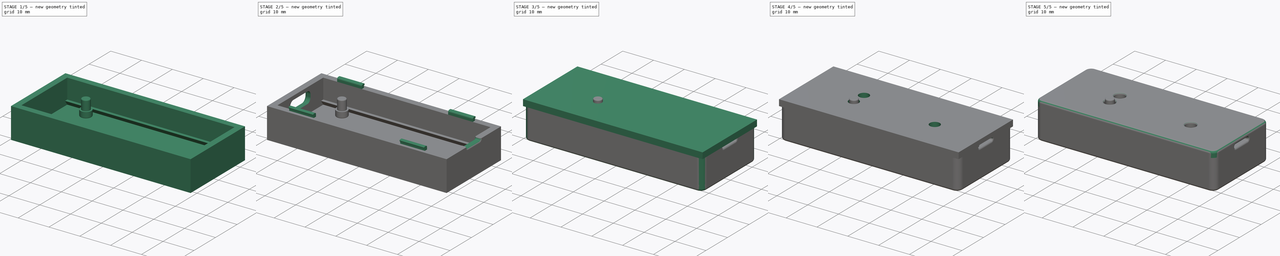
[diagram: build sequence overview — one tinted view per stage of 5, left to right]
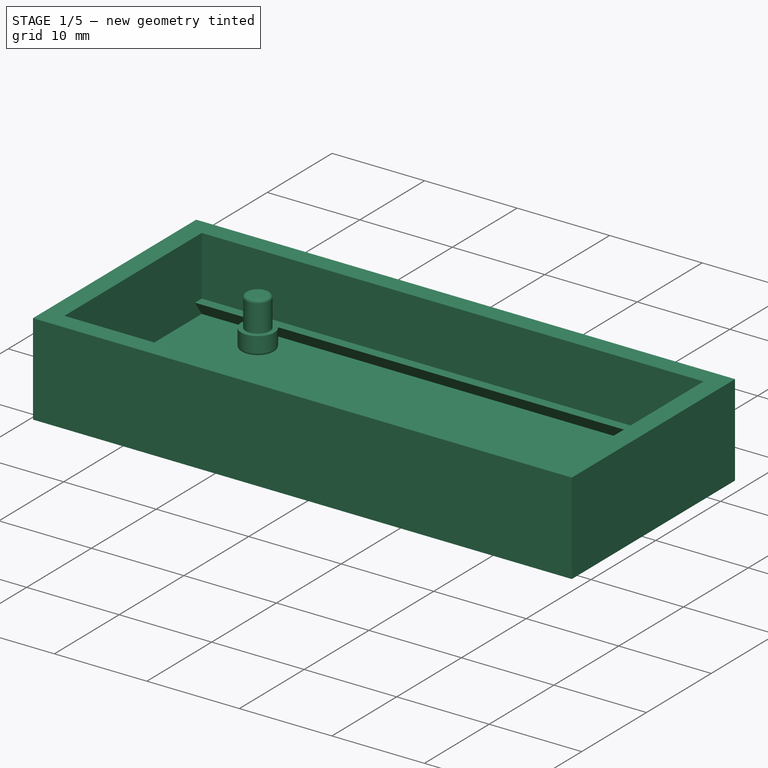
[diagram: stage 1 of 5 — iso view after this stage's code; geometry added in this stage tinted green]
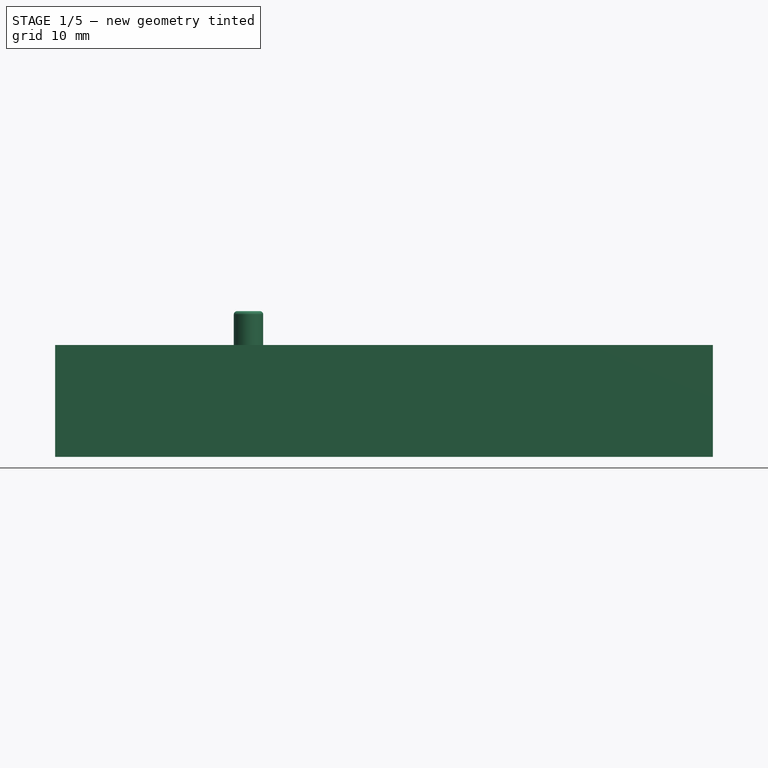
[diagram: stage 1 of 5 — front view after this stage's code; geometry added in this stage tinted green]
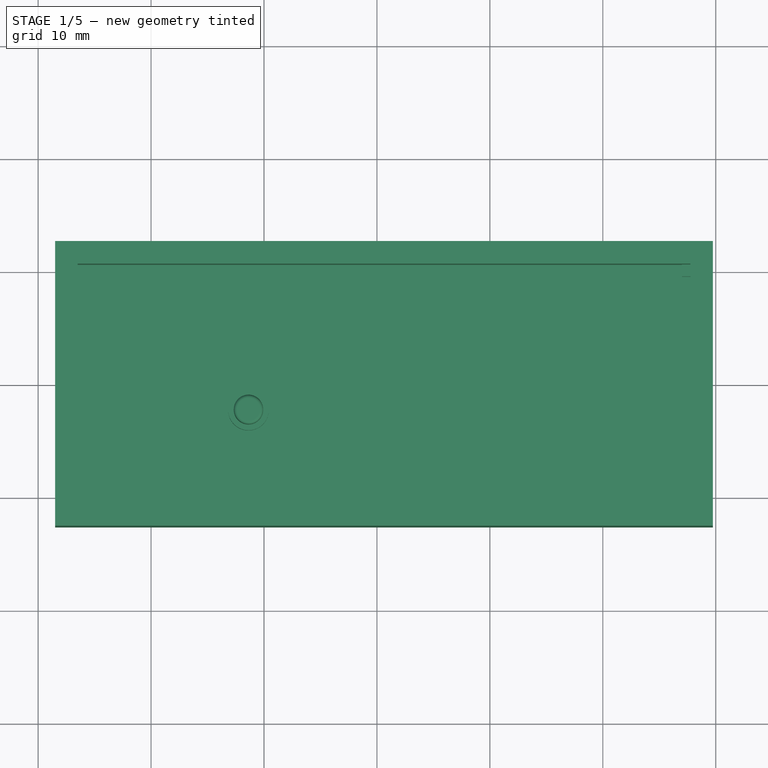
[diagram: stage 1 of 5 — top view after this stage's code; geometry added in this stage tinted green]
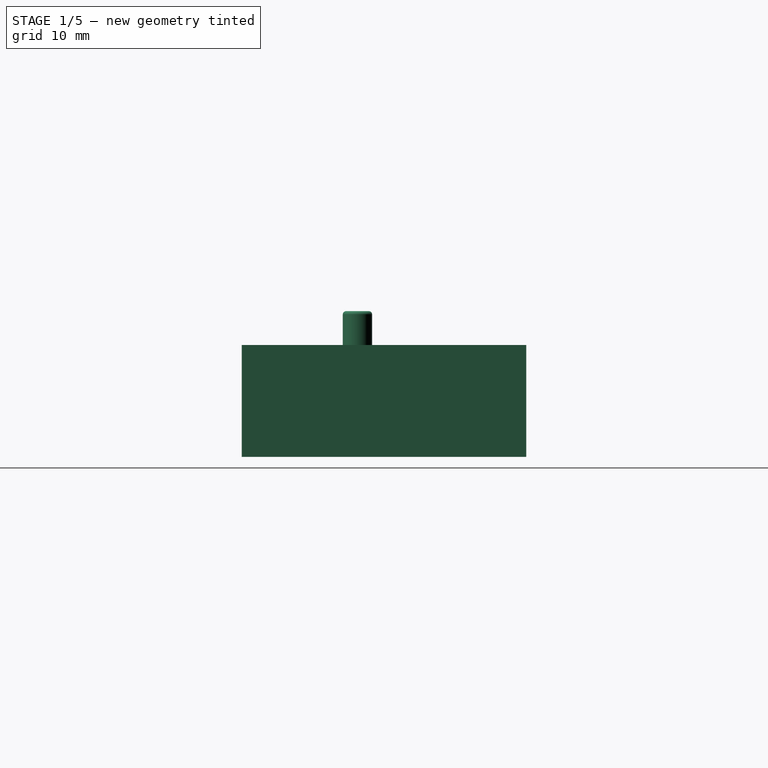
[diagram: stage 1 of 5 — right view after this stage's code; geometry added in this stage tinted green]
FCSTD DOCUMENT  (FreeCAD 0.19R27762 (Git))
Label: blackpill_case
License: Creative Commons Attribution
LicenseURL: http://creativecommons.org/licenses/by/4.0/
objects: Sketcher::SketchObject×15, PartDesign::Fillet×14, PartDesign::Pad×6, Part::SubShapeBinder×5, PartDesign::Pocket×5, PartDesign::Mirrored×4, PartDesign::Body×3, PartDesign::MultiTransform×2, Part::Feature×1, Spreadsheet::Sheet×1, PartDesign::Groove×1, PartDesign::AdditiveLoft×1, PartDesign::Revolution×1
note: 120 computed .brp shape members not serialized (recipe doc carries the construction recipe); baked Part::Feature solids carry a one-line shape summary decoded from their .brp

FEATURE [Part::SubShapeBinder] Import004  label="Import004(Top)"
  BindCopyOnChange = 0
  BindMode = 0
  ClaimChildren = false
  Context = -> Body002 [Import004.]
  FillStyle = 0
  Fuse = false
  MakeFace = false
  PartialLoad = false
  Relative = true
  Support = -> [Body001]
  _Version = 7
FEATURE [Part::SubShapeBinder] Import005  label="Import005(DIY_black_pill v003)"
  BindCopyOnChange = 0
  BindMode = 0
  ClaimChildren = false
  Context = -> Body002 [Import005.]
  FillStyle = 0
  Fuse = false
  MakeFace = false
  PartialLoad = false
  Relative = true
  Support = -> [Feature]
  _Version = 7
FEATURE [Sketcher::SketchObject] Sketch011
  AttachmentOffset = pos=(0,0,2.35) rot=(0,0,1;0rad)
  ExternalGeometry = -> [Import005,Import004]
  FullyConstrained = true
  MapMode = 5
  Placement = pos=(0,-2.35,-5e-16) rot=(1,0,0;1.5708rad)
  Support = -> [XZ_Plane002]
  sketch-geometry (6):
    g0: LineSegment StartX=-11.375 StartY=9.41 StartZ=0 EndX=-11.375 EndY=4.2 EndZ=0
    g1: LineSegment StartX=-11.375 StartY=4.2 StartZ=0 EndX=-13.175 EndY=4.2 EndZ=0
    g2: LineSegment StartX=-13.175 StartY=4.2 StartZ=0 EndX=-13.175 EndY=6.16 EndZ=0
    g3: LineSegment StartX=-13.175 StartY=6.16 StartZ=0 EndX=-12.675 EndY=6.16 EndZ=0
    g4: LineSegment StartX=-12.675 StartY=6.16 StartZ=0 EndX=-12.675 EndY=9.41 EndZ=0
    g5: LineSegment StartX=-12.675 StartY=9.41 StartZ=0 EndX=-11.375 EndY=9.41 EndZ=0
  constraints (18):
    c: Coincident(g1,g0)
    c: Horizontal(g1)
    c: Coincident(g2,g1)
    c: Coincident(g3,g2)
    c: Horizontal(g3)
    c: Coincident(g4,g3)
    c: Vertical(g4)
    c: Vertical(g2)
    c: Coincident(g5,g4)
    c: Coincident(g5,g0)
    c: Horizontal(g5)
    c: Distance(g1) = 1.8
    c: PointOnObject(g0,g-3)
    c: Distance(g2,g-5) = 0.25
    c: Distance(g0,g-4) = 1
    c: Distance(g3) = 0.5
    c: Distance(g-6,g4) = 0.35
    c: Vertical(g0)
FEATURE [Sketcher::SketchObject] Sketch
  AttachmentOffset = pos=(0,0,-3.5) rot=(0,0,1;0rad)
  ExternalGeometry = -> [Import]
  FullyConstrained = true
  MapMode = 5
  Placement = pos=(0,0,-3.5) rot=(0,0,1;0rad)
  Support = -> [XY_Plane]
  expr: .Constraints[10] = <<dimensions>>.box_wall_thickness
  expr: .Constraints[6] = <<dimensions>>.box_width
  expr: .Constraints[9] = <<dimensions>>.box_height
  sketch-geometry (4):
    g0: LineSegment StartX=-28.5 StartY=12.6 StartZ=0 EndX=29.75 EndY=12.6 EndZ=0
    g1: LineSegment StartX=29.75 StartY=12.6 StartZ=0 EndX=29.75 EndY=-12.6 EndZ=0
    g2: LineSegment StartX=29.75 StartY=-12.6 StartZ=0 EndX=-28.5 EndY=-12.6 EndZ=0
    g3: LineSegment StartX=-28.5 StartY=-12.6 StartZ=0 EndX=-28.5 EndY=12.6 EndZ=0
  constraints (11):
    c: Coincident(g0,g1)
    c: Coincident(g1,g2)
    c: Coincident(g2,g3)
    c: Coincident(g3,g0)
    c: Horizontal(g2)
    c: Vertical(g3)
    c: Distance(g0) = 58.25
    c: Symmetric(g0,g1,g-1) = 58.25
    c: Horizontal(g0) = 25.4
    c: Distance(g1) = 25.2
    c: Distance(g-3,g3) = 2
FEATURE [Sketcher::SketchObject] Sketch001
  AttachmentOffset = pos=(0,0,-1.5) rot=(0,0,1;0rad)
  ExternalGeometry = -> [Sketch]
  FullyConstrained = true
  MapMode = 2
  Placement = pos=(0,0,-1.5) rot=(0,0,1;0rad)
  Support = -> [XY_Plane]
  expr: .Constraints[21] = <<dimensions>>.box_wall_thickness
  expr: .Constraints[30] = <<dimensions>>.box_wall_thickness
  sketch-geometry (11):
    g0: LineSegment StartX=-28.5 StartY=12.6 StartZ=0 EndX=29.75 EndY=12.6 EndZ=0
    g1: LineSegment StartX=29.75 StartY=12.6 StartZ=0 EndX=29.75 EndY=-12.6 EndZ=0
    g2: LineSegment StartX=29.75 StartY=-12.6 StartZ=0 EndX=-28.5 EndY=-12.6 EndZ=0
    g3: LineSegment StartX=-28.5 StartY=-12.6 StartZ=0 EndX=-28.5 EndY=12.6 EndZ=0
    g4: LineSegment StartX=-26.5 StartY=10.6 StartZ=0 EndX=27.75 EndY=10.6 EndZ=0
    g5: LineSegment StartX=27.75 StartY=10.6 StartZ=0 EndX=27.75 EndY=-10.6 EndZ=0
    g6: LineSegment StartX=27.75 StartY=-10.6 StartZ=0 EndX=-26.5 EndY=-10.6 EndZ=0
    g7: LineSegment [constr] StartX=27.75 StartY=-10.6 StartZ=0 EndX=27.75 EndY=-12.6 EndZ=0
    g8: LineSegment StartX=-26.5 StartY=10.6 StartZ=0 EndX=-26.5 EndY=-10.6 EndZ=0
    g9: LineSegment [constr] StartX=27.75 StartY=10.6 StartZ=0 EndX=27.75 EndY=12.6 EndZ=0
    g10: LineSegment [constr] StartX=27.75 StartY=10.6 StartZ=0 EndX=29.75 EndY=10.6 EndZ=0
  constraints (31):
    c: Coincident(g0,g1)
    c: Coincident(g1,g2)
    c: Coincident(g2,g3)
    c: Coincident(g3,g0)
    c: Horizontal(g0)
    c: Horizontal(g2)
    c: Vertical(g1)
    c: Vertical(g3)
    c: Coincident(g4,g5)
    c: Coincident(g5,g6)
    c: Horizontal(g4)
    c: Horizontal(g6)
    c: Vertical(g5)
    c: Coincident(g7,g5)
    c: PointOnObject(g7,g2)
    c: Vertical(g7)
    c: Coincident(g0,g-3)
    c: Coincident(g1,g-4)
    c: Coincident(g8,g4)
    c: Coincident(g8,g6)
    c: Vertical(g8)
    c: Distance(g4,g3) = 2
    c: Coincident(g9,g4)
    c: PointOnObject(g9,g0)
    c: Vertical(g9)
    c: Equal(g9,g7)
    c: Coincident(g10,g4)
    c: PointOnObject(g10,g1)
    c: Horizontal(g10)
    c: Equal(g10,g9)
    c: Distance(g9) = 2
FEATURE [PartDesign::Pad] Pad  label="Base001"
  ClaimChildren = false
  Direction = (1,1,1)
  Fit = 0
  FitJoin = 0
  InnerFit = 0
  InnerFitJoin = 0
  InnerTaperAngle = 0
  InnerTaperAngleRev = 0
  Length = 2
  Length2 = 100
  NewSolid = false
  Profile = -> Sketch
  Suppress = false
  Type = 0
FEATURE [Sketcher::SketchObject] Sketch012
  ExternalGeometry = -> [Pad,Import]
  FullyConstrained = true
  MapMode = 5
  Support = -> [XY_Plane]
  expr: .Constraints[26] = <<dimensions>>.box_wall_thickness
  expr: .Constraints[27] = <<dimensions>>.box_wall_thickness
  sketch-geometry (10):
    g0: LineSegment StartX=-28.5 StartY=12.6 StartZ=0 EndX=29.75 EndY=12.6 EndZ=0
    g1: LineSegment StartX=29.75 StartY=12.6 StartZ=0 EndX=29.75 EndY=-12.6 EndZ=0
    g2: LineSegment StartX=29.75 StartY=-12.6 StartZ=0 EndX=-28.5 EndY=-12.6 EndZ=0
    g3: LineSegment StartX=-28.5 StartY=-12.6 StartZ=0 EndX=-28.5 EndY=12.6 EndZ=0
    g4: LineSegment StartX=-26.5 StartY=9.55 StartZ=0 EndX=27.75 EndY=9.55 EndZ=0
    g5: LineSegment StartX=27.75 StartY=9.55 StartZ=0 EndX=27.75 EndY=-9.55 EndZ=0
    g6: LineSegment StartX=27.75 StartY=-9.55 StartZ=0 EndX=-26.5 EndY=-9.55 EndZ=0
    g7: LineSegment StartX=-26.5 StartY=-9.55 StartZ=0 EndX=-26.5 EndY=9.55 EndZ=0
    g8: LineSegment [constr] StartX=-24.1 StartY=-9.05 StartZ=0 EndX=-24.1 EndY=-9.55 EndZ=0
    g9: LineSegment [constr] StartX=-24.1 StartY=9.05 StartZ=0 EndX=-24.1 EndY=9.55 EndZ=0
  constraints (28):
    c: Coincident(g0,g1)
    c: Coincident(g1,g2)
    c: Coincident(g2,g3)
    c: Coincident(g3,g0)
    c: Horizontal(g0)
    c: Horizontal(g2)
    c: Vertical(g1)
    c: Vertical(g3)
    c: Coincident(g4,g5)
    c: Coincident(g5,g6)
    c: Coincident(g6,g7)
    c: Coincident(g7,g4)
    c: Horizontal(g4)
    c: Horizontal(g6)
    c: Vertical(g5)
    c: Vertical(g7)
    c: Coincident(g0,g-3)
    c: Coincident(g-4,g1)
    c: Coincident(g8,g-6)
    c: PointOnObject(g8,g6)
    c: Vertical(g8)
    c: Coincident(g9,g-5)
    c: PointOnObject(g9,g4)
    c: Vertical(g9)
    c: Equal(g9,g8)
    c: Distance(g9) = 0.5
    c: Distance(g4,g3) = 2
    c: Distance(g4,g1) = 2
FEATURE [PartDesign::AdditiveLoft] AdditiveLoft
  BaseFeature = -> Pad
  ClaimChildren = false
  Closed = false
  Fit = 0
  FitJoin = 0
  InnerFit = 0
  InnerFitJoin = 0
  NewSolid = false
  Profile = -> Sketch001
  Ruled = false
  Sections = -> [Sketch012]
  Suppress = false
FEATURE [Sketcher::SketchObject] Sketch013
  ExternalGeometry = -> [Sketch]
  FullyConstrained = true
  MapMode = 5
  Support = -> [XY_Plane]
  expr: .Constraints[29] = <<dimensions>>.box_height - <<dimensions>>.box_wall_thickness * 2
  expr: .Constraints[30] = <<dimensions>>.box_wall_thickness
  sketch-geometry (11):
    g0: LineSegment StartX=-28.5 StartY=12.6 StartZ=0 EndX=29.75 EndY=12.6 EndZ=0
    g1: LineSegment StartX=29.75 StartY=12.6 StartZ=0 EndX=29.75 EndY=-12.6 EndZ=0
    g2: LineSegment StartX=29.75 StartY=-12.6 StartZ=0 EndX=-28.5 EndY=-12.6 EndZ=0
    g3: LineSegment StartX=-28.5 StartY=-12.6 StartZ=0 EndX=-28.5 EndY=12.6 EndZ=0
    g4: LineSegment StartX=-26.5 StartY=10.6 StartZ=0 EndX=27.75 EndY=10.6 EndZ=0
    g5: LineSegment StartX=27.75 StartY=10.6 StartZ=0 EndX=27.75 EndY=-10.6 EndZ=0
    g6: LineSegment StartX=27.75 StartY=-10.6 StartZ=0 EndX=-26.5 EndY=-10.6 EndZ=0
    g7: LineSegment [constr] StartX=27.75 StartY=-10.6 StartZ=0 EndX=27.75 EndY=-12.6 EndZ=0
    g8: LineSegment StartX=-26.5 StartY=10.6 StartZ=0 EndX=-26.5 EndY=-10.6 EndZ=0
    g9: LineSegment [constr] StartX=27.75 StartY=10.6 StartZ=0 EndX=27.75 EndY=12.6 EndZ=0
    g10: LineSegment [constr] StartX=27.75 StartY=10.6 StartZ=0 EndX=29.75 EndY=10.6 EndZ=0
  constraints (31):
    c: Coincident(g0,g1)
    c: Coincident(g1,g2)
    c: Coincident(g2,g3)
    c: Coincident(g3,g0)
    c: Horizontal(g0)
    c: Horizontal(g2)
    c: Vertical(g1)
    c: Vertical(g3)
    c: Coincident(g4,g5)
    c: Coincident(g5,g6)
    c: Horizontal(g4)
    c: Horizontal(g6)
    c: Vertical(g5)
    c: Coincident(g7,g5)
    c: PointOnObject(g7,g2)
    c: Vertical(g7)
    c: Coincident(g0,g-3)
    c: Coincident(g1,g-4)
    c: Coincident(g8,g4)
    c: Coincident(g8,g6)
    c: Vertical(g8)
    c: Coincident(g9,g4) = 2
    c: PointOnObject(g9,g0)
    c: Vertical(g9)
    c: Equal(g9,g7)
    c: Coincident(g10,g4)
    c: PointOnObject(g10,g1)
    c: Horizontal(g10)
    c: Equal(g10,g9)
    c: Distance(g8) = 21.2
    c: Distance(g4,g3) = 2
FEATURE [PartDesign::Pad] Pad002
  BaseFeature = -> AdditiveLoft
  ClaimChildren = false
  Direction = (1,1,1)
  Fit = 0
  FitJoin = 0
  InnerFit = 0
  InnerFitJoin = 0
  InnerTaperAngle = 0
  InnerTaperAngleRev = 0
  Length = 10
  Length2 = 100
  NewSolid = false
  Offset = 1.5
  Profile = -> Sketch013
  Suppress = false
  Type = 3
  UpToFace = -> Feature [Face296]
FEATURE [PartDesign::Body] Body001  label="Top"
  AutoGroupSolids = false
  ExportMode = 0
  Group = -> [Import001,Import003,Sketch006,Pad001,Sketch007,Pocket001,Sketch008,Groove,Pocket003,Sketch010,Pad004,Pocket005,MultiTransform001,Fillet003,Fillet004,Fillet005,Fillet011,Fillet016,Fillet017,Sketch016,Sketch019,Mirrored003,Mirrored004]
  Origin = -> Origin001
  Tip = -> Fillet017
  _ExportChildren = -> [Import001,Import003,Pad001,Pocket001,Groove,Pocket003,Pad004,Pocket005,MultiTransform001,Fillet003,Fillet004,Fillet005,Fillet011,Fillet016,Fillet017]
  _GroupVersion = 1
FEATURE [Sketcher::SketchObject] Sketch020
  ExternalGeometry = -> [Pad002,Import]
  FullyConstrained = true
  MapMode = 5
  Support = -> [Pad002]
  sketch-geometry (9):
    g0: LineSegment StartX=27.75 StartY=10.6 StartZ=0 EndX=27 EndY=10.6 EndZ=0
    g1: LineSegment StartX=27 StartY=10.6 StartZ=0 EndX=27 EndY=9.55 EndZ=0
    g2: LineSegment StartX=27 StartY=9.55 StartZ=0 EndX=27.75 EndY=9.55 EndZ=0
    g3: LineSegment StartX=27.75 StartY=9.55 StartZ=0 EndX=27.75 EndY=10.6 EndZ=0
    g4: LineSegment StartX=27.75 StartY=-9.55 StartZ=0 EndX=27 EndY=-9.55 EndZ=0
    g5: LineSegment StartX=27 StartY=-9.55 StartZ=0 EndX=27 EndY=-10.6 EndZ=0
    g6: LineSegment StartX=27 StartY=-10.6 StartZ=0 EndX=27.75 EndY=-10.6 EndZ=0
    g7: LineSegment StartX=27.75 StartY=-10.6 StartZ=0 EndX=27.75 EndY=-9.55 EndZ=0
    g8: LineSegment [constr] StartX=27 StartY=-9.55 StartZ=0 EndX=27 EndY=9.55 EndZ=0
  constraints (26):
    c: Coincident(g0,g1)
    c: Coincident(g1,g2)
    c: Coincident(g2,g3)
    c: Coincident(g3,g0)
    c: Horizontal(g0)
    c: Horizontal(g2)
    c: Vertical(g1)
    c: Vertical(g3)
    c: PointOnObject(g0,g-4)
    c: PointOnObject(g0,g-3)
    c: PointOnObject(g1,g-6)
    c: Distance(g1,g-7) = 0.5
    c: Coincident(g4,g5)
    c: Coincident(g5,g6)
    c: Coincident(g6,g7)
    c: Coincident(g7,g4)
    c: Horizontal(g4)
    c: Horizontal(g6)
    c: Vertical(g5)
    c: Vertical(g7)
    c: PointOnObject(g4,g-4)
    c: PointOnObject(g5,g-5)
    c: PointOnObject(g4,g-8)
    c: Coincident(g8,g4)
    c: Coincident(g8,g1)
    c: Vertical(g8)
FEATURE [PartDesign::Pad] Pad006
  BaseFeature = -> Pad002
  ClaimChildren = false
  Direction = (1,1,1)
  Fit = 0
  FitJoin = 0
  InnerFit = 0
  InnerFitJoin = 0
  InnerTaperAngle = 0
  InnerTaperAngleRev = 0
  Length = 1.6
  Length2 = 100
  NewSolid = false
  Profile = -> Sketch020
  Suppress = false
  Type = 3
  UpToFace = -> Import [Face1705]
FEATURE [PartDesign::Body] Body  label="Base"
  AutoGroupSolids = false
  ExportMode = 0
  Group = -> [Import,Pad,Sketch001,AdditiveLoft,Pad002,Pad006,Sketch013,Sketch005,Pocket,Sketch009,Pocket002,Pad005,MultiTransform,Fillet,Fillet001,Fillet002,Fillet006,Fillet008,Fillet018,Fillet019,Sketch,Sketch012,Sketch018,Mirrored,Mirrored002,Sketch020]
  Origin = -> Origin
  Tip = -> Fillet019
  _ExportChildren = -> [Import,Pad,AdditiveLoft,Pad002,Pad006,Pocket,Pocket002,Pad005,MultiTransform,Fillet,Fillet001,Fillet002,Fillet006,Fillet008,Fillet018,Fillet019]
  _GroupVersion = 1
FEATURE [PartDesign::Revolution] Revolution
  Angle = 360
  Axis = (0,2e-16,-1)
  Base = (-11.375,-2.35,9.41)
  ClaimChildren = false
  Fit = 0
  FitJoin = 0
  InnerFit = 0
  InnerFitJoin = 0
  NewSolid = false
  Placement = pos=(0,0,0) rot=(1,0,0;1.5708rad)
  Profile = -> Sketch011
  ReferenceAxis = -> Sketch011 [Edge1]
  Suppress = false
FEATURE [PartDesign::Fillet] Fillet020
  Base = -> Revolution [Face5,Face1]
  BaseFeature = -> Revolution
  NewSolid = false
  Placement = pos=(0,0,0) rot=(1,0,0;1.5708rad)
  Radius = 0.3
  SupportTransform = false
  Suppress = false
FEATURE [PartDesign::Body] Body002  label="Button"
  AutoGroupSolids = false
  ExportMode = 0
  Group = -> [Import004,Import005,Sketch011,Revolution,Fillet020]
  Origin = -> Origin002
  Tip = -> Fillet020
  _ExportChildren = -> [Import004,Import005,Revolution,Fillet020]
  _GroupVersion = 1
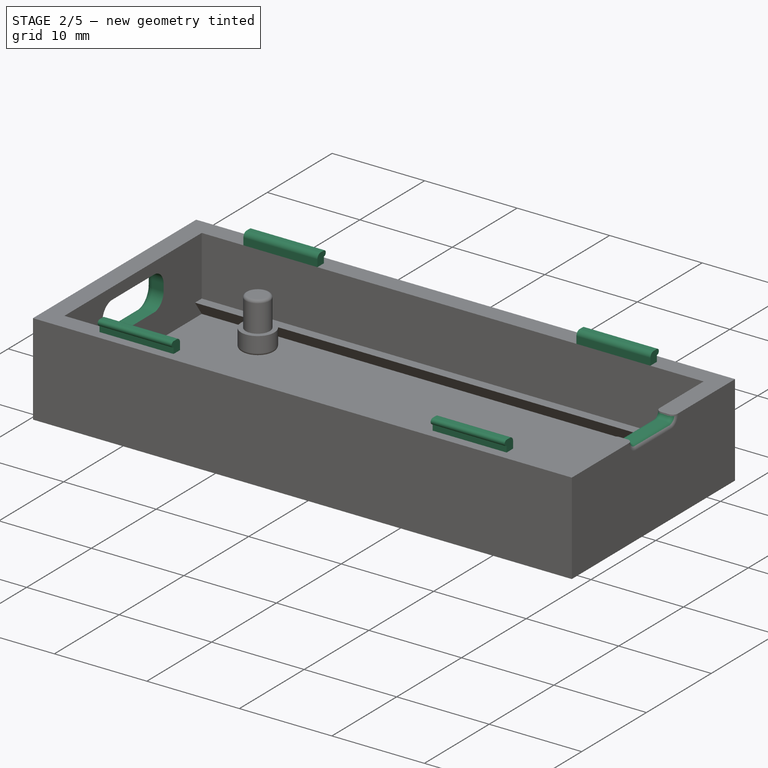
[diagram: stage 2 of 5 — iso view after this stage's code; geometry added in this stage tinted green]
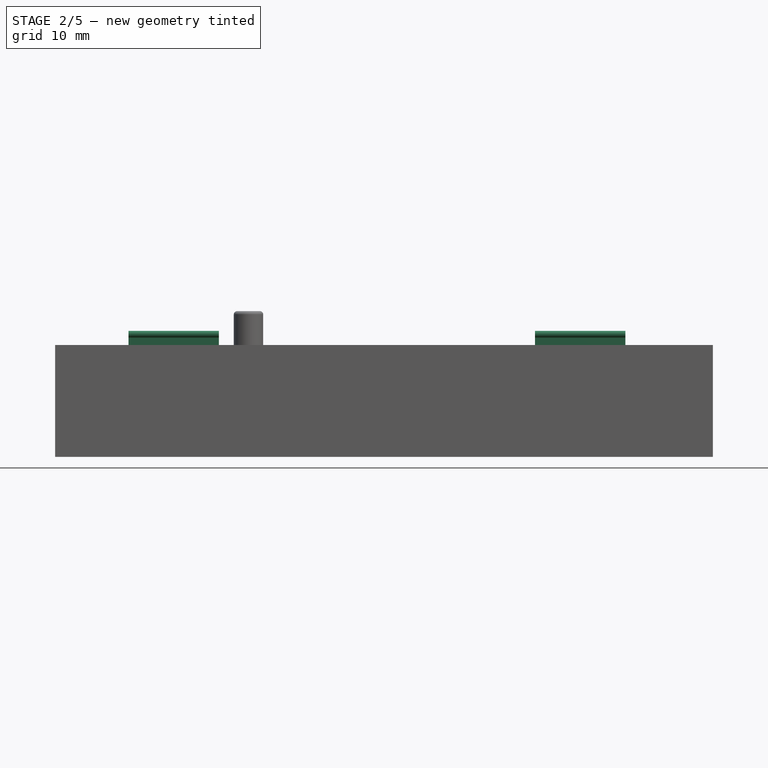
[diagram: stage 2 of 5 — front view after this stage's code; geometry added in this stage tinted green]
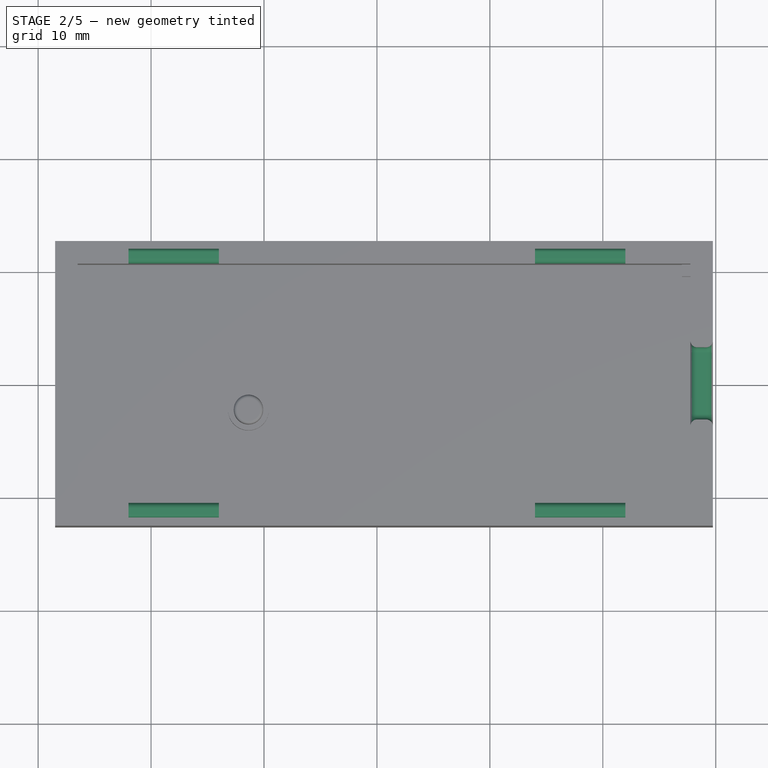
[diagram: stage 2 of 5 — top view after this stage's code; geometry added in this stage tinted green]
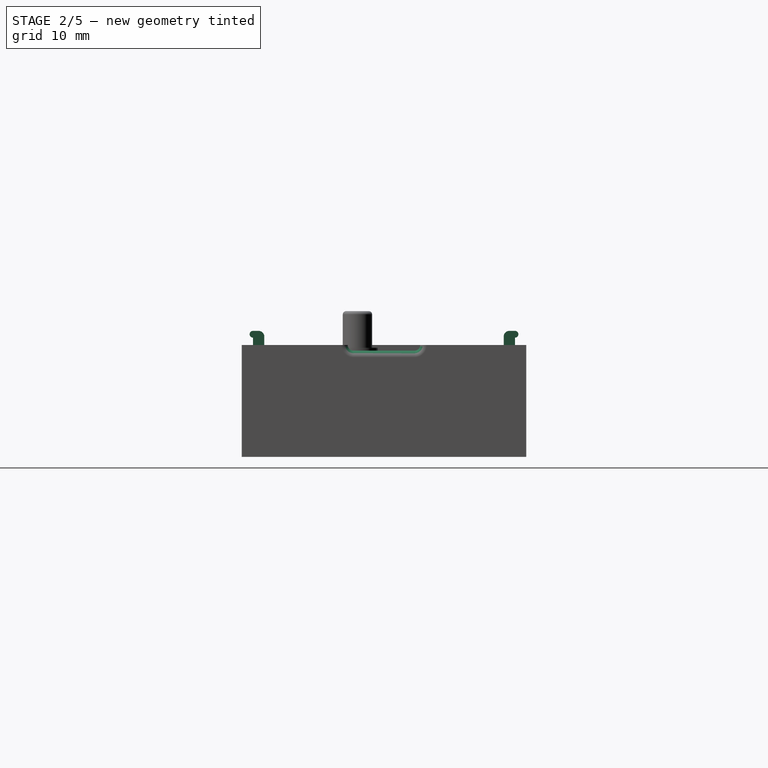
[diagram: stage 2 of 5 — right view after this stage's code; geometry added in this stage tinted green]
FEATURE [Sketcher::SketchObject] Sketch005
  ExternalGeometry = -> [Pad002]
  FullyConstrained = true
  MapMode = 5
  Placement = pos=(29.75,0,0) rot=(0.57735,0.57735,0.57735;2.0944rad)
  Support = -> [Pad006]
  sketch-geometry (4):
    g0: LineSegment StartX=-2.7 StartY=5.91 StartZ=0 EndX=2.7 EndY=5.91 EndZ=0
    g1: ArcOfCircle CenterX=-2.7 CenterY=6.41 CenterZ=0 NormalX=0 NormalY=0 NormalZ=1 AngleXU=0 Radius=0.5 StartAngle=3.14159 EndAngle=4.71239
    g2: ArcOfCircle CenterX=2.7 CenterY=6.41 CenterZ=0 NormalX=0 NormalY=0 NormalZ=1 AngleXU=0 Radius=0.5 StartAngle=4.71239 EndAngle=6.28319
    g3: LineSegment StartX=-3.2 StartY=6.41 StartZ=0 EndX=3.2 EndY=6.41 EndZ=0
  constraints (11):
    c: Horizontal(g0)
    c: Tangent(g2,g0) = -1.5708
    c: Tangent(g1,g0) = -1.5708
    c: Equal(g1,g2)
    c: Coincident(g3,g1)
    c: Coincident(g3,g2)
    c: Distance(g3) = 6.4
    c: Distance(g0,g3) = 0.5
    c: PointOnObject(g1,g3)
    c: Symmetric(g1,g2,g-2)
    c: PointOnObject(g1,g-3)
FEATURE [PartDesign::Pocket] Pocket
  ClaimChildren = false
  Fit = 0
  FitJoin = 0
  InnerFit = 0
  InnerFitJoin = 0
  InnerTaperAngle = 0
  InnerTaperAngleRev = 0
  Length = 5
  Length2 = 100
  NewSolid = false
  Profile = -> Sketch005
  Suppress = false
  Type = 2
FEATURE [Sketcher::SketchObject] Sketch009
  ExternalGeometry = -> [Import]
  FullyConstrained = false
  MapMode = 5
  Placement = pos=(-28.5,0,0) rot=(0.57735,-0.57735,-0.57735;2.0944rad)
  Support = -> [Pocket]
  sketch-geometry (8):
    g0: ArcOfCircle CenterX=-3.22 CenterY=3.66 CenterZ=0 NormalX=0 NormalY=0 NormalZ=1 AngleXU=0 Radius=1.5 StartAngle=1.5708 EndAngle=3.14159
    g1: ArcOfCircle CenterX=-3.22 CenterY=2.95 CenterZ=0 NormalX=0 NormalY=0 NormalZ=1 AngleXU=0 Radius=1.5 StartAngle=3.14159 EndAngle=4.71239
    g2: ArcOfCircle CenterX=3.22 CenterY=2.95 CenterZ=0 NormalX=0 NormalY=0 NormalZ=1 AngleXU=0 Radius=1.5 StartAngle=4.71239 EndAngle=6.28319
    g3: ArcOfCircle CenterX=3.22 CenterY=3.66 CenterZ=0 NormalX=0 NormalY=0 NormalZ=1 AngleXU=0 Radius=1.5 StartAngle=0 EndAngle=1.5708
    g4: LineSegment StartX=-3.22 StartY=5.16 StartZ=0 EndX=3.22 EndY=5.16 EndZ=0
    g5: LineSegment StartX=4.72 StartY=3.66 StartZ=0 EndX=4.72 EndY=2.95 EndZ=0
    g6: LineSegment StartX=3.22 StartY=1.45 StartZ=0 EndX=-3.22 EndY=1.45 EndZ=0
    g7: LineSegment StartX=-4.72 StartY=2.95 StartZ=0 EndX=-4.72 EndY=3.66 EndZ=0
  constraints (17):
    c: Coincident(g0,g-4)
    c: Coincident(g1,g-6)
    c: Coincident(g2,g-9)
    c: Coincident(g3,g-7)
    c: Coincident(g4,g0)
    c: Horizontal(g4)
    c: Coincident(g6,g2)
    c: Horizontal(g6)
    c: Vertical(g7)
    c: Vertical(g5)
    c: Tangent(g5,g2) = 1.5708
    c: Tangent(g7,g0) = 1.5708
    c: Distance(g2,g-10) = 0.25
    c: Tangent(g7,g1) = 1.5708
    c: Tangent(g5,g3) = 1.5708
    c: Tangent(g4,g3) = 1.5708
    c: Tangent(g6,g1) = 1.5708
FEATURE [PartDesign::Pocket] Pocket002
  BaseFeature = -> Pocket
  ClaimChildren = false
  Fit = 0
  FitJoin = 0
  InnerFit = 0
  InnerFitJoin = 0
  InnerTaperAngle = 0
  InnerTaperAngleRev = 0
  Length = 5
  Length2 = 100
  NewSolid = false
  Profile = -> Sketch009
  Suppress = false
  Type = 2
FEATURE [Sketcher::SketchObject] Sketch018
  AttachmentOffset = pos=(0,0,18) rot=(0,0,1;0rad)
  ExternalGeometry = -> [Pocket002]
  FullyConstrained = true
  MapMode = 5
  Placement = pos=(18,-4e-15,4e-15) rot=(0.57735,0.57735,0.57735;2.0944rad)
  Support = -> [YZ_Plane]
  sketch-geometry (7):
    g0: LineSegment StartX=10.6 StartY=7.16 StartZ=0 EndX=10.6 EndY=6.41 EndZ=0
    g1: LineSegment StartX=11.1 StartY=7.66 StartZ=0 EndX=11.6 EndY=7.66 EndZ=0
    g2: LineSegment StartX=11.6 StartY=7.06 StartZ=0 EndX=11.6 EndY=6.41 EndZ=0
    g3: LineSegment StartX=10.6 StartY=6.41 StartZ=0 EndX=11.6 EndY=6.41 EndZ=0
    g4: ArcOfCircle CenterX=11.1 CenterY=7.16 CenterZ=0 NormalX=0 NormalY=0 NormalZ=1 AngleXU=0 Radius=0.5 StartAngle=1.5708 EndAngle=3.14159
    g5: ArcOfCircle CenterX=11.6 CenterY=7.36 CenterZ=0 NormalX=0 NormalY=0 NormalZ=1 AngleXU=0 Radius=0.3 StartAngle=4.71239 EndAngle=7.85398
    g6: LineSegment [constr] StartX=11.6 StartY=7.66 StartZ=0 EndX=11.6 EndY=7.06 EndZ=0
  constraints (19):
    c: Horizontal(g1)
    c: Vertical(g2)
    c: Coincident(g3,g0)
    c: Coincident(g3,g2)
    c: Distance(g3) = 1
    c: Vertical(g0)
    c: Tangent(g1,g4) = 1.5708
    c: Tangent(g0,g4) = -1.5708
    c: Distance(g1,g3) = 1.25
    c: Radius(g4) = 0.5
    c: PointOnObject(g0,g-3)
    c: PointOnObject(g2,g-3)
    c: Coincident(g5,g2)
    c: Distance(g2) = 0.65
    c: Tangent(g5,g1) = 1.5708
    c: Coincident(g6,g1)
    c: Coincident(g6,g2)
    c: Vertical(g6)
    c: PointOnObject(g0,g-4)
FEATURE [PartDesign::Pad] Pad005  label="Clip"
  BaseFeature = -> Pocket002
  ClaimChildren = false
  Direction = (1,1,1)
  Fit = 0
  FitJoin = 0
  InnerFit = 0
  InnerFitJoin = 0
  InnerTaperAngle = 0
  InnerTaperAngleRev = 0
  Length = 8
  Length2 = 100
  Midplane = true
  NewSolid = false
  Profile = -> Sketch018
  Suppress = false
  Type = 0
FEATURE [PartDesign::Mirrored] Mirrored
  CopyShape = false
  MirrorPlane = -> Sketch018 [V_Axis]
  NewSolid = false
  ParallelTransform = true
  SubTransform = true
  Suppress = false
FEATURE [PartDesign::MultiTransform] MultiTransform  label="Other clips"
  BaseFeature = -> Pad005
  CopyShape = false
  NewSolid = false
  OriginalSubs = -> [Pad005]
  Originals = -> [Pad005]
  ParallelTransform = true
  SubTransform = true
  Suppress = false
  Transformations = -> [Mirrored,Mirrored002]
FEATURE [PartDesign::Fillet] Fillet
  Base = -> MultiTransform [Edge27]
  BaseFeature = -> MultiTransform
  NewSolid = false
  Radius = 0.8
  SupportTransform = false
  Suppress = false
FEATURE [PartDesign::Fillet] Fillet001
  Base = -> Fillet [Edge89,Edge100]
  BaseFeature = -> Fillet
  NewSolid = false
  Radius = 0.6
  SupportTransform = false
  Suppress = false
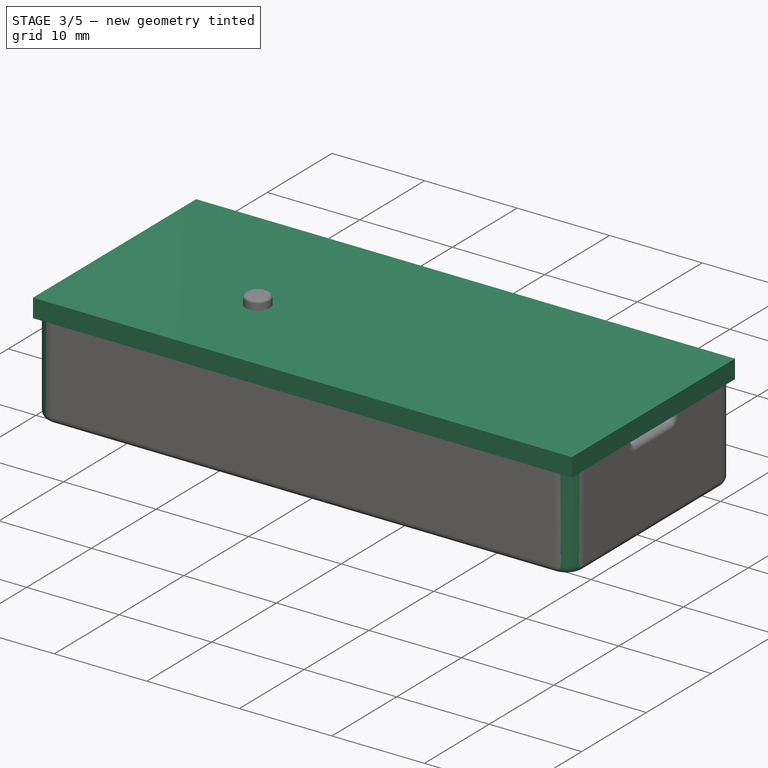
[diagram: stage 3 of 5 — iso view after this stage's code; geometry added in this stage tinted green]
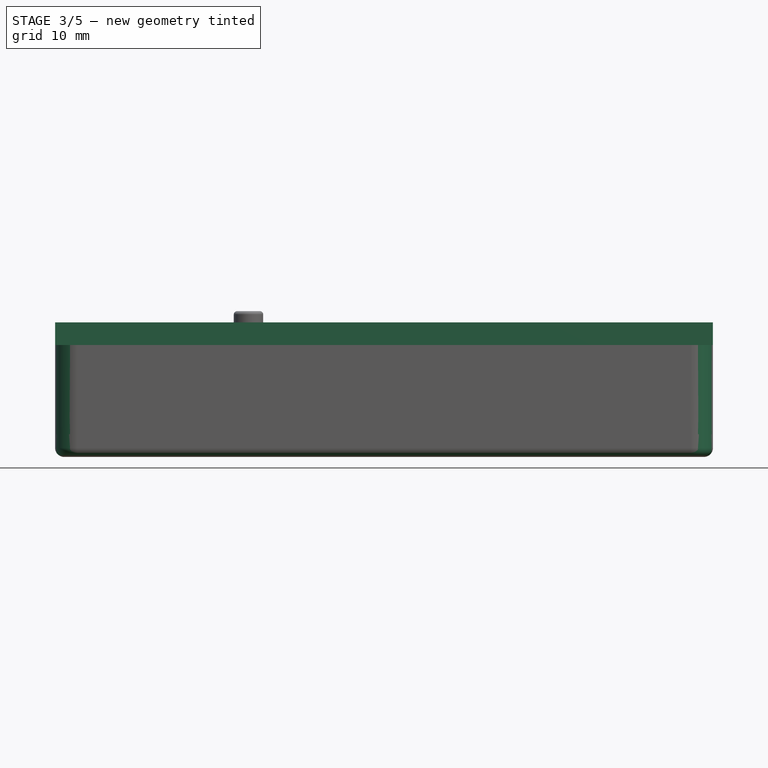
[diagram: stage 3 of 5 — front view after this stage's code; geometry added in this stage tinted green]
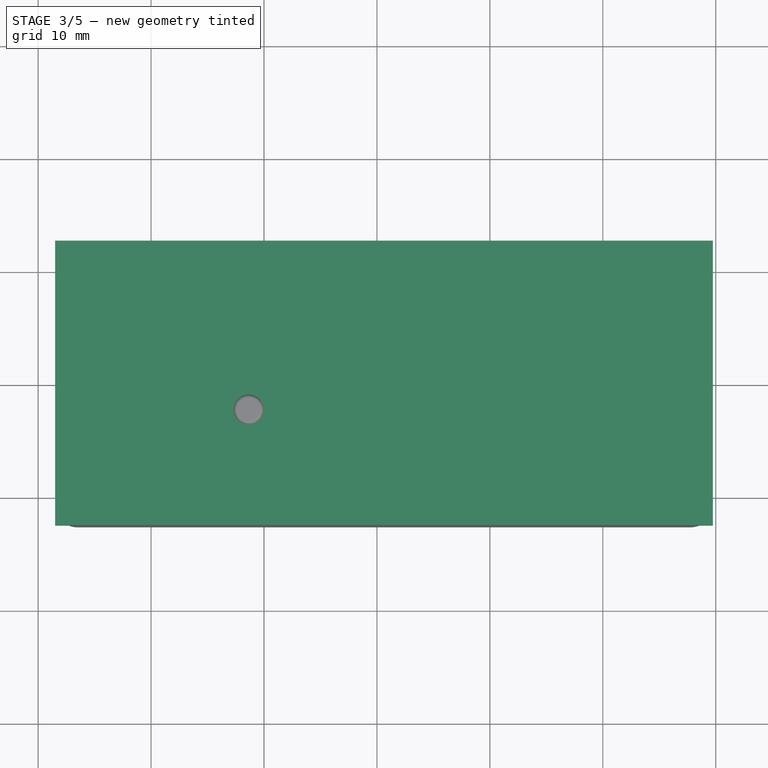
[diagram: stage 3 of 5 — top view after this stage's code; geometry added in this stage tinted green]
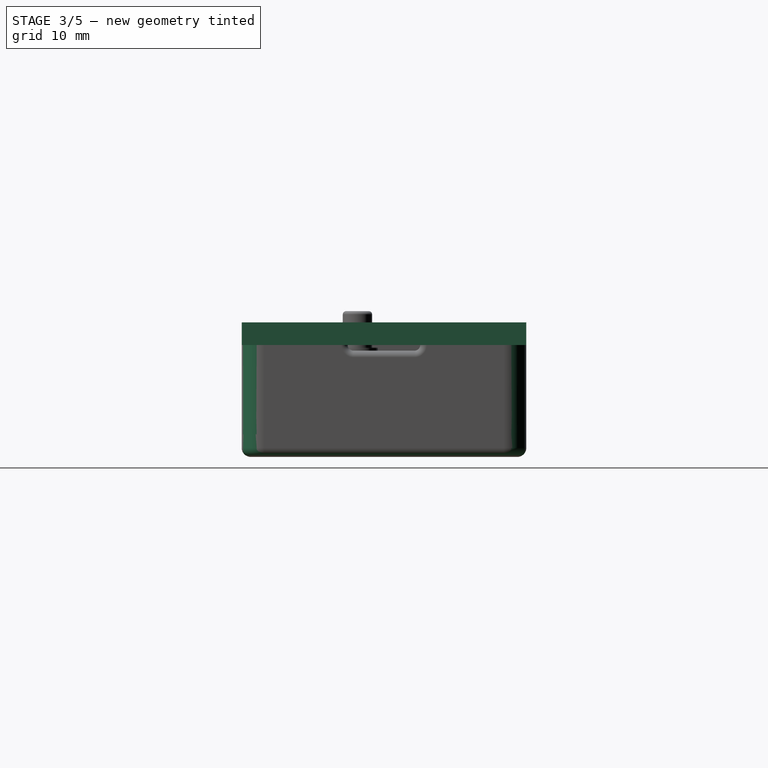
[diagram: stage 3 of 5 — right view after this stage's code; geometry added in this stage tinted green]
FEATURE [Part::Feature] Feature  label="DIY_black_pill v003"
  shape: bbox 53.01 x 20.91 x 4.934 mm, 4666 faces, 276 solids (baked)
FEATURE [Part::SubShapeBinder] Import  label="Import(DIY_black_pill v003)"
  BindCopyOnChange = 0
  BindMode = 0
  ClaimChildren = false
  Context = -> Body [Import.]
  FillStyle = 0
  Fuse = false
  MakeFace = false
  PartialLoad = false
  Relative = true
  Support = -> [Feature]
  _Version = 7
FEATURE [Part::SubShapeBinder] Import001  label="Import001(Base)"
  BindCopyOnChange = 0
  BindMode = 0
  ClaimChildren = false
  Context = -> Body001 [Import001.]
  FillStyle = 0
  Fuse = false
  MakeFace = false
  PartialLoad = false
  Relative = true
  Support = -> [Body]
  _Version = 7
FEATURE [Sketcher::SketchObject] Sketch006
  ExternalGeometry = -> [Import001]
  FullyConstrained = true
  MapMode = 5
  Placement = pos=(0,0,6.41) rot=(0,0,1;0rad)
  Support = -> [Import001]
  expr: .Constraints[16] = <<dimensions>>.box_wall_thickness
  expr: .Constraints[6] = <<dimensions>>.box_width
  expr: .Constraints[9] = <<dimensions>>.box_height
  sketch-geometry (6):
    g0: LineSegment StartX=-28.5 StartY=12.6 StartZ=0 EndX=29.75 EndY=12.6 EndZ=0
    g1: LineSegment StartX=29.75 StartY=12.6 StartZ=0 EndX=29.75 EndY=-12.6 EndZ=0
    g2: LineSegment StartX=29.75 StartY=-12.6 StartZ=0 EndX=-28.5 EndY=-12.6 EndZ=0
    g3: LineSegment StartX=-28.5 StartY=-12.6 StartZ=0 EndX=-28.5 EndY=12.6 EndZ=0
    g4: LineSegment [constr] StartX=-26.5 StartY=10.6 StartZ=0 EndX=-26.5 EndY=12.6 EndZ=0
    g5: LineSegment [constr] StartX=-26.5 StartY=10.6 StartZ=0 EndX=-28.5 EndY=10.6 EndZ=0
  constraints (18):
    c: Coincident(g0,g1)
    c: Coincident(g1,g2)
    c: Coincident(g2,g3)
    c: Coincident(g3,g0)
    c: Horizontal(g2)
    c: Vertical(g1)
    c: Distance(g0) = 58.25
    c: Vertical(g3)
    c: Horizontal(g0)
    c: Distance(g1) = 25.2
    c: PointOnObject(g4,g0)
    c: Vertical(g4)
    c: PointOnObject(g5,g3)
    c: Horizontal(g5)
    c: Coincident(g5,g4)
    c: Equal(g5,g4)
    c: Distance(g4) = 2
    c: Coincident(g4,g-3)
FEATURE [PartDesign::Pad] Pad001
  ClaimChildren = false
  Direction = (1,1,1)
  Fit = 0
  FitJoin = 0
  InnerFit = 0
  InnerFitJoin = 0
  InnerTaperAngle = 0
  InnerTaperAngleRev = 0
  Length = 2
  Length2 = 100
  NewSolid = false
  Profile = -> Sketch006
  Suppress = false
  Type = 0
FEATURE [PartDesign::Fillet] Fillet002
  Base = -> Fillet001 [Edge204,Edge203,Edge208,Edge206]
  BaseFeature = -> Fillet001
  NewSolid = false
  Radius = 2
  SupportTransform = false
  Suppress = false
FEATURE [PartDesign::Fillet] Fillet006
  Base = -> Fillet002 [Face96]
  BaseFeature = -> Fillet002
  NewSolid = false
  Radius = 0.8
  SupportTransform = false
  Suppress = false
FEATURE [PartDesign::Fillet] Fillet008
  Base = -> Fillet006 [Edge255,Edge256]
  BaseFeature = -> Fillet006
  NewSolid = false
  Radius = 0.3
  SupportTransform = false
  Suppress = false
FEATURE [PartDesign::Fillet] Fillet018
  Base = -> Fillet008 [Edge69,Edge74,Edge63,Edge55]
  BaseFeature = -> Fillet008
  NewSolid = false
  Radius = 0.15
  SupportTransform = false
  Suppress = false
FEATURE [PartDesign::Fillet] Fillet019
  Base = -> Fillet018 [Edge173,Edge175,Edge174,Edge189,Edge190,Edge188]
  BaseFeature = -> Fillet018
  NewSolid = false
  Radius = 0.25
  SupportTransform = false
  Suppress = false
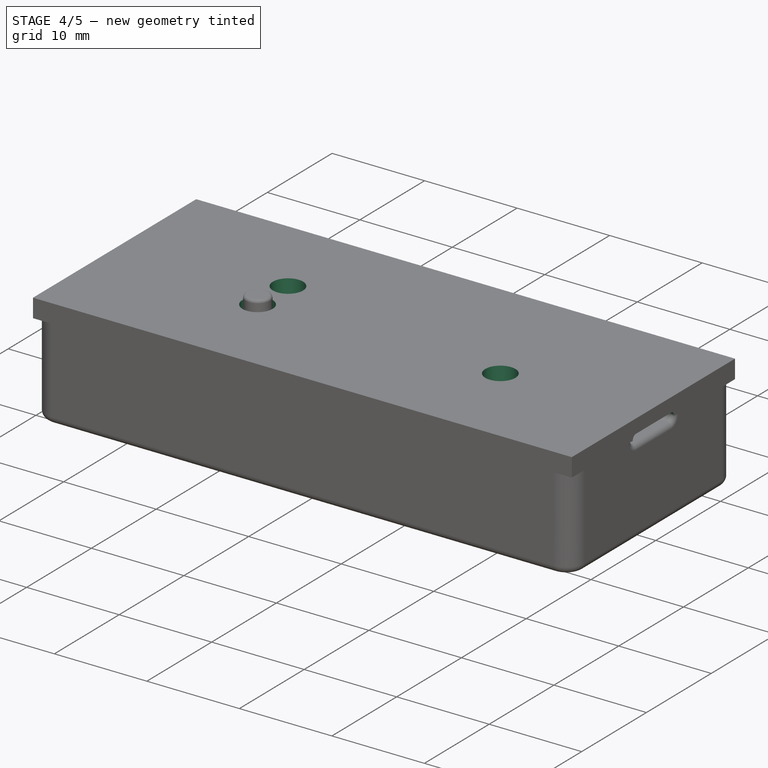
[diagram: stage 4 of 5 — iso view after this stage's code; geometry added in this stage tinted green]
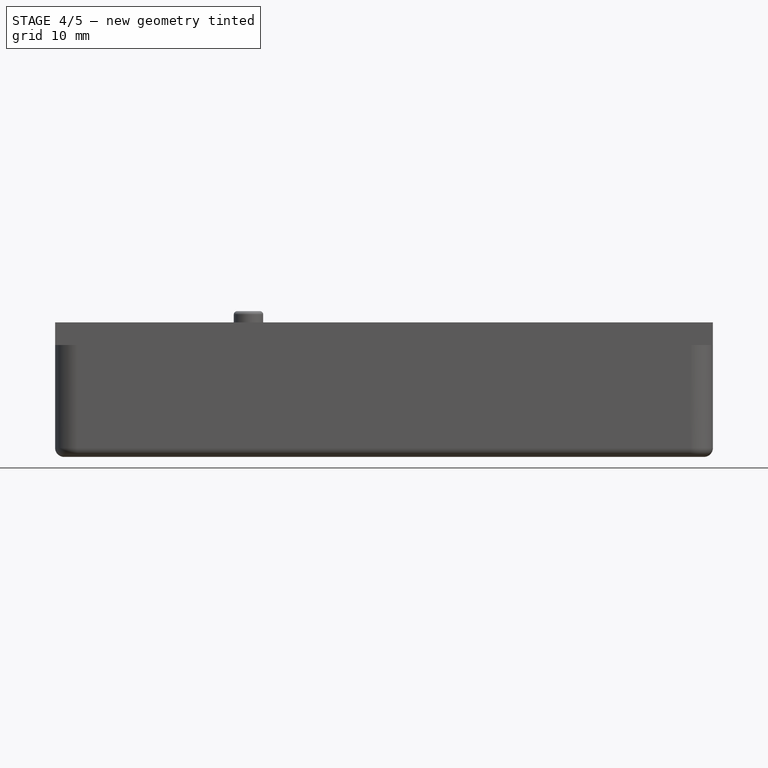
[diagram: stage 4 of 5 — front view after this stage's code; geometry added in this stage tinted green]
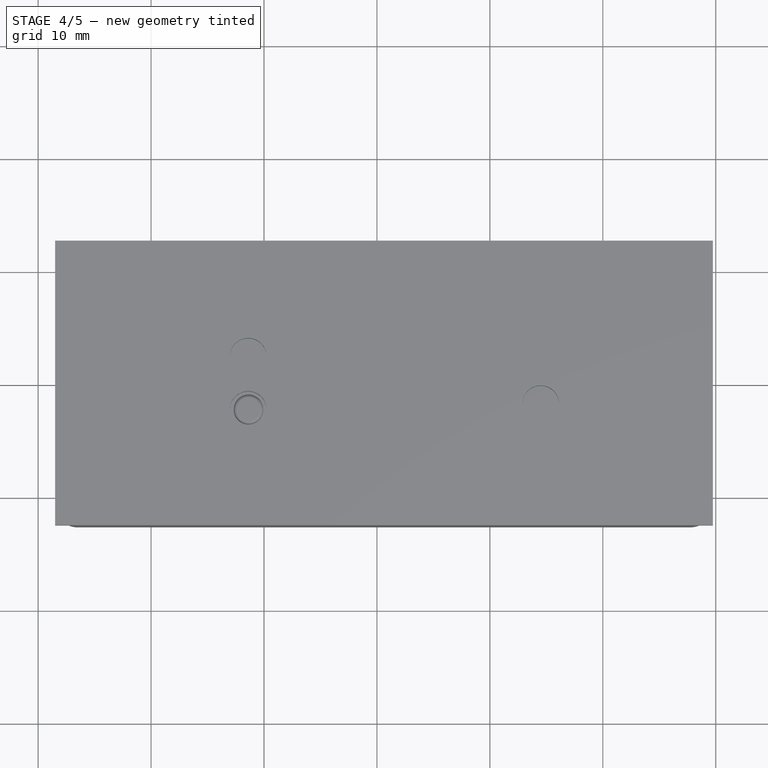
[diagram: stage 4 of 5 — top view after this stage's code; geometry added in this stage tinted green]
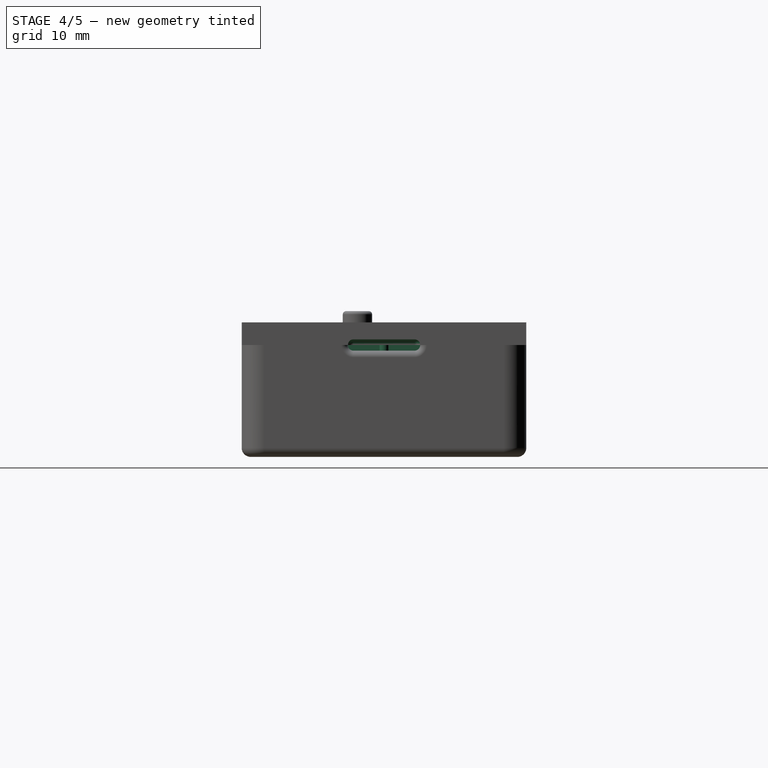
[diagram: stage 4 of 5 — right view after this stage's code; geometry added in this stage tinted green]
FEATURE [Sketcher::SketchObject] Sketch007
  ExternalGeometry = -> [Pad001]
  FullyConstrained = true
  MapMode = 5
  Placement = pos=(29.75,0,0) rot=(0.57735,0.57735,0.57735;2.0944rad)
  Support = -> [Pad001]
  sketch-geometry (4):
    g0: ArcOfCircle CenterX=-2.7 CenterY=6.41 CenterZ=0 NormalX=0 NormalY=0 NormalZ=1 AngleXU=0 Radius=0.5 StartAngle=1.5708 EndAngle=3.14159
    g1: ArcOfCircle CenterX=2.7 CenterY=6.41 CenterZ=0 NormalX=0 NormalY=0 NormalZ=1 AngleXU=0 Radius=0.5 StartAngle=3e-16 EndAngle=1.5708
    g2: LineSegment StartX=-2.7 StartY=6.91 StartZ=0 EndX=2.7 EndY=6.91 EndZ=0
    g3: LineSegment StartX=-3.2 StartY=6.41 StartZ=0 EndX=3.2 EndY=6.41 EndZ=0
  constraints (11):
    c: Tangent(g2,g0) = 1.5708
    c: Tangent(g2,g1) = 1.5708
    c: Horizontal(g2)
    c: Coincident(g3,g1)
    c: Coincident(g3,g0)
    c: Radius(g1) = 0.5
    c: PointOnObject(g0,g-3)
    c: PointOnObject(g1,g-3)
    c: Distance(g3) = 6.4
    c: Perpendicular(g0,g3)
    c: Symmetric(g0,g1,g-2)
FEATURE [PartDesign::Pocket] Pocket001
  BaseFeature = -> Pad001
  ClaimChildren = false
  Fit = 0
  FitJoin = 0
  InnerFit = 0
  InnerFitJoin = 0
  InnerTaperAngle = 0
  InnerTaperAngleRev = 0
  Length = 2.75
  Length2 = 100
  NewSolid = false
  Profile = -> Sketch007
  Suppress = false
  Type = 0
FEATURE [Spreadsheet::Sheet] Spreadsheet  label="dimensions"
  PythonMode = false
  cells = A1=Board Width; B1(board_width)==53mm; A2=Board Height; B2(board_height)==20.9mm; A3=Box Width; B3(box_width)==board_width + 2.25mm + 3mm; A4=Box Height; B4(box_height)==board_height + 2.15mm * 2; A5=Box Wall Thickness; B5(box_wall_thickness)==2mm
FEATURE [Sketcher::SketchObject] Sketch008
  ExternalGeometry = -> [Pad001,Pocket001]
  FullyConstrained = true
  MapMode = 5
  Placement = pos=(27,0,0) rot=(0.57735,0.57735,0.57735;2.0944rad)
  Support = -> [Pocket001]
  sketch-geometry (4):
    g0: ArcOfCircle CenterX=-2.7 CenterY=6.41 CenterZ=0 NormalX=0 NormalY=0 NormalZ=1 AngleXU=0 Radius=0.5 StartAngle=1.5708 EndAngle=3.14159
    g1: ArcOfCircle CenterX=2.7 CenterY=6.41 CenterZ=0 NormalX=0 NormalY=0 NormalZ=1 AngleXU=0 Radius=0.5 StartAngle=-9e-16 EndAngle=1.5708
    g2: LineSegment StartX=-2.7 StartY=6.91 StartZ=0 EndX=2.7 EndY=6.91 EndZ=0
    g3: LineSegment StartX=-3.2 StartY=6.41 StartZ=0 EndX=3.2 EndY=6.41 EndZ=0
  constraints (10):
    c: Tangent(g2,g0) = 1.5708
    c: Coincident(g3,g0)
    c: Coincident(g3,g1)
    c: PointOnObject(g0,g-3)
    c: PointOnObject(g1,g-3)
    c: PointOnObject(g1,g3)
    c: PointOnObject(g0,g3)
    c: Tangent(g2,g1) = 1.5708
    c: Coincident(g1,g-5)
    c: Coincident(g0,g-4)
FEATURE [PartDesign::Groove] Groove
  Angle = 90
  Axis = (0,1,0)
  Base = (27,-3.2,6.41)
  BaseFeature = -> Pocket001
  ClaimChildren = false
  Fit = 0
  FitJoin = 0
  InnerFit = 0
  InnerFitJoin = 0
  NewSolid = false
  Profile = -> Sketch008
  ReferenceAxis = -> Pocket001 [Edge16]
  Reversed = true
  Suppress = false
FEATURE [Part::SubShapeBinder] Import003  label="Import003(DIY_black_pill v003)"
  BindCopyOnChange = 0
  BindMode = 0
  ClaimChildren = false
  Context = -> Body001 [Import003.]
  FillStyle = 0
  Fuse = false
  MakeFace = false
  PartialLoad = false
  Relative = true
  Support = -> [Feature]
  _Version = 7
FEATURE [Sketcher::SketchObject] Sketch010
  ExternalGeometry = -> [Import003]
  FullyConstrained = true
  MapMode = 5
  Placement = pos=(0,0,8.41) rot=(0,0,1;0rad)
  Support = -> [Groove]
  sketch-geometry (10):
    g0: Circle CenterX=-11.4 CenterY=2.34979 CenterZ=0 NormalX=0 NormalY=0 NormalZ=1 AngleXU=0 Radius=1.625
    g1: Circle CenterX=-11.4 CenterY=-2.34979 CenterZ=0 NormalX=0 NormalY=0 NormalZ=1 AngleXU=0 Radius=1.625
    g2: LineSegment [constr] StartX=-11.8 StartY=3.29979 StartZ=0 EndX=-11 EndY=1.39979 EndZ=0
    g3: LineSegment [constr] StartX=-11.8 StartY=1.39979 StartZ=0 EndX=-11 EndY=3.29979 EndZ=0
    g4: LineSegment [constr] StartX=-11.8 StartY=-1.39979 StartZ=0 EndX=-11 EndY=-3.29979 EndZ=0
    g5: LineSegment [constr] StartX=-11.8 StartY=-3.29979 StartZ=0 EndX=-11 EndY=-1.39979 EndZ=0
    g6: LineSegment [constr] StartX=-11.4 StartY=-0.724788 StartZ=0 EndX=-11.4 EndY=0.724788 EndZ=0
    g7: Circle CenterX=14.5 CenterY=-1.84979 CenterZ=0 NormalX=0 NormalY=0 NormalZ=1 AngleXU=0 Radius=1.625
    g8: LineSegment [constr] StartX=14.1 StartY=-0.899788 StartZ=0 EndX=14.9 EndY=-2.79979 EndZ=0
    g9: LineSegment [constr] StartX=14.9 StartY=-0.899788 StartZ=0 EndX=14.1 EndY=-2.79979 EndZ=0
  constraints (26):
    c: Coincident(g2,g-4)
    c: Coincident(g2,g-3)
    c: Coincident(g3,g-3)
    c: Coincident(g3,g-4)
    c: Coincident(g4,g-5)
    c: Coincident(g4,g-6)
    c: Coincident(g5,g-6)
    c: Coincident(g5,g-5)
    c: PointOnObject(g1,g4)
    c: PointOnObject(g1,g5)
    c: PointOnObject(g0,g2)
    c: PointOnObject(g0,g3)
    c: Equal(g0,g1)
    c: Diameter(g0) = 3.25
    c: PointOnObject(g6,g1)
    c: PointOnObject(g6,g0)
    c: Perpendicular(g0,g6)
    c: Perpendicular(g1,g6)
    c: Distance(g6) = 1.44958
    c: Equal(g7,g1)
    c: Coincident(g8,g-7)
    c: Coincident(g8,g-8)
    c: Coincident(g9,g-7)
    c: Coincident(g9,g-8)
    c: PointOnObject(g7,g8)
    c: PointOnObject(g7,g9)
FEATURE [PartDesign::Pocket] Pocket003  label="Button Holes001"
  BaseFeature = -> Groove
  ClaimChildren = false
  Fit = 0
  FitJoin = 0
  InnerFit = 0
  InnerFitJoin = 0
  InnerTaperAngle = 0
  InnerTaperAngleRev = 0
  Length = 5
  Length2 = 100
  NewSolid = false
  Profile = -> Sketch010
  Suppress = false
  Type = 2
FEATURE [Sketcher::SketchObject] Sketch016
  ExternalGeometry = -> [Import003]
  FullyConstrained = true
  MapMode = 5
  Placement = pos=(0,0,6.41) rot=(1,0,0;3.14159rad)
  sketch-geometry (15):
    g0: LineSegment StartX=-0.4 StartY=-4.03051 StartZ=0 EndX=-0.4 EndY=-0.4 EndZ=0
    g1: LineSegment StartX=-0.4 StartY=-0.4 StartZ=0 EndX=-4.03051 EndY=-0.4 EndZ=0
    g2: LineSegment StartX=-4.03051 StartY=0.4 StartZ=0 EndX=-0.4 EndY=0.4 EndZ=0
    g3: LineSegment StartX=-0.4 StartY=0.4 StartZ=0 EndX=-0.4 EndY=4.03051 EndZ=0
    g4: LineSegment StartX=0.4 StartY=4.03051 StartZ=0 EndX=0.4 EndY=0.4 EndZ=0
    g5: LineSegment StartX=0.4 StartY=0.4 StartZ=0 EndX=4.03051 EndY=0.4 EndZ=0
    g6: LineSegment StartX=4.03051 StartY=-0.4 StartZ=0 EndX=0.4 EndY=-0.4 EndZ=0
    g7: LineSegment StartX=0.4 StartY=-0.4 StartZ=0 EndX=0.4 EndY=-4.03051 EndZ=0
    g8: LineSegment [constr] StartX=-0.4 StartY=0.4 StartZ=0 EndX=0.4 EndY=-0.4 EndZ=0
    g9: LineSegment [constr] StartX=-0.4 StartY=-0.4 StartZ=0 EndX=0.4 EndY=0.4 EndZ=0
    g10: LineSegment [constr] StartX=4.31335 StartY=-0.282843 StartZ=0 EndX=4.49013 EndY=-0.459619 EndZ=0
    g11: ArcOfCircle CenterX=1.36393e-09 CenterY=4.03051 CenterZ=0 NormalX=0 NormalY=0 NormalZ=1 AngleXU=0 Radius=0.4 StartAngle=8e-16 EndAngle=3.14159
    g12: ArcOfCircle CenterX=-4.03051 CenterY=-2.052e-13 CenterZ=0 NormalX=0 NormalY=0 NormalZ=1 AngleXU=0 Radius=0.4 StartAngle=1.5708 EndAngle=4.71239
    g13: ArcOfCircle CenterX=4.03051 CenterY=-1.38892e-09 CenterZ=0 NormalX=0 NormalY=0 NormalZ=1 AngleXU=0 Radius=0.4 StartAngle=4.71239 EndAngle=7.85398
    g14: ArcOfCircle CenterX=0 CenterY=-4.03051 CenterZ=0 NormalX=0 NormalY=0 NormalZ=1 AngleXU=0 Radius=0.4 StartAngle=3.14159 EndAngle=6.28319
  constraints (44):
    c: Vertical(g0)
    c: Horizontal(g2)
    c: Coincident(g3,g2)
    c: Vertical(g4)
    c: Coincident(g5,g4)
    c: Horizontal(g5)
    c: Horizontal(g6)
    c: Coincident(g7,g6)
    c: Vertical(g7)
    c: Coincident(g1,g0)
    c: Horizontal(g1)
    c: Vertical(g3)
    c: Equal(g5,g3)
    c: Equal(g3,g4)
    c: Equal(g4,g2)
    c: Equal(g2,g1)
    c: Equal(g1,g0)
    c: Equal(g0,g7)
    c: Equal(g7,g6)
    c: Coincident(g8,g2)
    c: Coincident(g8,g6)
    c: Coincident(g9,g0)
    c: Coincident(g9,g4)
    c: PointOnObject(g-1,g8)
    c: PointOnObject(g-1,g9)
    c: PointOnObject(g10,g-4)
    c: Perpendicular(g-4,g10)
    c: Distance(g10) = 0.25
    c: Tangent(g11,g3) = 1.5708
    c: Tangent(g11,g4) = 1.5708
    c: Diameter(g11) = 0.8
    c: Coincident(g12,g2)
    c: Coincident(g12,g1)
    c: PointOnObject(g14,g-2)
    c: Coincident(g14,g7)
    c: Coincident(g14,g0)
    c: Tangent(g0,g14)
    c: Tangent(g7,g14)
    c: Tangent(g2,g12)
    c: Tangent(g13,g5) = 1.5708
    c: Tangent(g13,g6) = 1.5708
    c: Equal(g13,g11)
    c: Perpendicular(g13,g10)
    c: PointOnObject(g10,g13)
FEATURE [PartDesign::Pad] Pad004
  BaseFeature = -> Pocket003
  ClaimChildren = false
  Direction = (1,1,1)
  Fit = 0
  FitJoin = 0
  InnerFit = 0
  InnerFitJoin = 0
  InnerTaperAngle = 0
  InnerTaperAngleRev = 0
  Length = 10
  Length2 = 100
  NewSolid = false
  Profile = -> Sketch016
  Suppress = false
  Type = 3
  UpToFace = -> Import003 [Face1193]
FEATURE [Sketcher::SketchObject] Sketch019
  AttachmentOffset = pos=(0,0,18) rot=(0,0,1;0rad)
  ExternalGeometry = -> [Groove,Import001]
  FullyConstrained = true
  MapMode = 5
  Placement = pos=(18,-4e-15,4e-15) rot=(0.57735,0.57735,0.57735;2.0944rad)
  Support = -> [YZ_Plane001]
  sketch-geometry (8):
    g0: LineSegment StartX=11.75 StartY=6.41 StartZ=0 EndX=11.75 EndY=6.81 EndZ=0
    g1: LineSegment StartX=11.75 StartY=6.81 StartZ=0 EndX=12 EndY=6.81 EndZ=0
    g2: LineSegment StartX=12 StartY=6.81 StartZ=0 EndX=12 EndY=7.81 EndZ=0
    g3: LineSegment StartX=12 StartY=7.81 StartZ=0 EndX=10.45 EndY=7.81 EndZ=0
    g4: LineSegment StartX=9.95 StartY=7.31 StartZ=0 EndX=9.95 EndY=6.41 EndZ=0
    g5: LineSegment StartX=9.95 StartY=6.41 StartZ=0 EndX=11.75 EndY=6.41 EndZ=0
    g6: ArcOfCircle CenterX=10.45 CenterY=7.31 CenterZ=0 NormalX=0 NormalY=0 NormalZ=1 AngleXU=0 Radius=0.5 StartAngle=1.5708 EndAngle=3.14159
    g7: GeomPoint [constr] X=9.95 Y=7.81 Z=0
  constraints (22):
    c: Vertical(g0)
    c: Coincident(g1,g0)
    c: Horizontal(g1)
    c: Coincident(g2,g1)
    c: Vertical(g2)
    c: Coincident(g3,g2)
    c: Horizontal(g3)
    c: Vertical(g4)
    c: Coincident(g5,g4)
    c: Coincident(g5,g0)
    c: Distance(g2,g-3) = 0.6
    c: PointOnObject(g7,g3)
    c: PointOnObject(g7,g4)
    c: Tangent(g3,g6) = -1.5708
    c: Tangent(g4,g6) = -1.5708
    c: Radius(g6) = 0.5
    c: PointOnObject(g4,g-5)
    c: PointOnObject(g0,g-5)
    c: Distance(g5) = 1.8
    c: Distance(g1,g-4) = 0.6
    c: Distance(g0) = 0.4
    c: Distance(g0,g-6) = 0.15
FEATURE [PartDesign::Pocket] Pocket005
  BaseFeature = -> Pad004
  ClaimChildren = false
  Fit = 0
  FitJoin = 0
  InnerFit = 0
  InnerFitJoin = 0
  InnerTaperAngle = 0
  InnerTaperAngleRev = 0
  Length = 8.25
  Length2 = 100
  Midplane = true
  NewSolid = false
  Profile = -> Sketch019
  Suppress = false
  Type = 0
FEATURE [PartDesign::Mirrored] Mirrored002
  CopyShape = false
  MirrorPlane = -> YZ_Plane
  NewSolid = false
  ParallelTransform = true
  SubTransform = true
  Suppress = false
FEATURE [PartDesign::Mirrored] Mirrored003
  CopyShape = false
  MirrorPlane = -> Sketch019 [V_Axis]
  NewSolid = false
  ParallelTransform = true
  SubTransform = true
  Suppress = false
FEATURE [PartDesign::Mirrored] Mirrored004
  CopyShape = false
  MirrorPlane = -> YZ_Plane001
  NewSolid = false
  ParallelTransform = true
  SubTransform = true
  Suppress = false
FEATURE [PartDesign::MultiTransform] MultiTransform001
  BaseFeature = -> Pocket005
  CopyShape = false
  NewSolid = false
  OriginalSubs = -> [Pocket005]
  Originals = -> [Pocket005]
  ParallelTransform = true
  SubTransform = true
  Suppress = false
  Transformations = -> [Mirrored003,Mirrored004]
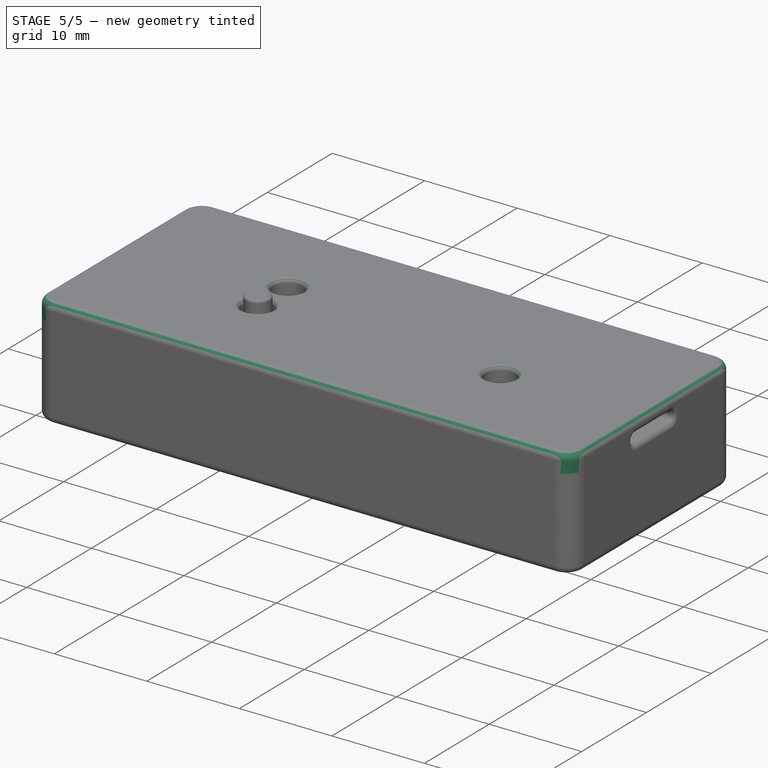
[diagram: stage 5 of 5 — iso view after this stage's code; geometry added in this stage tinted green]
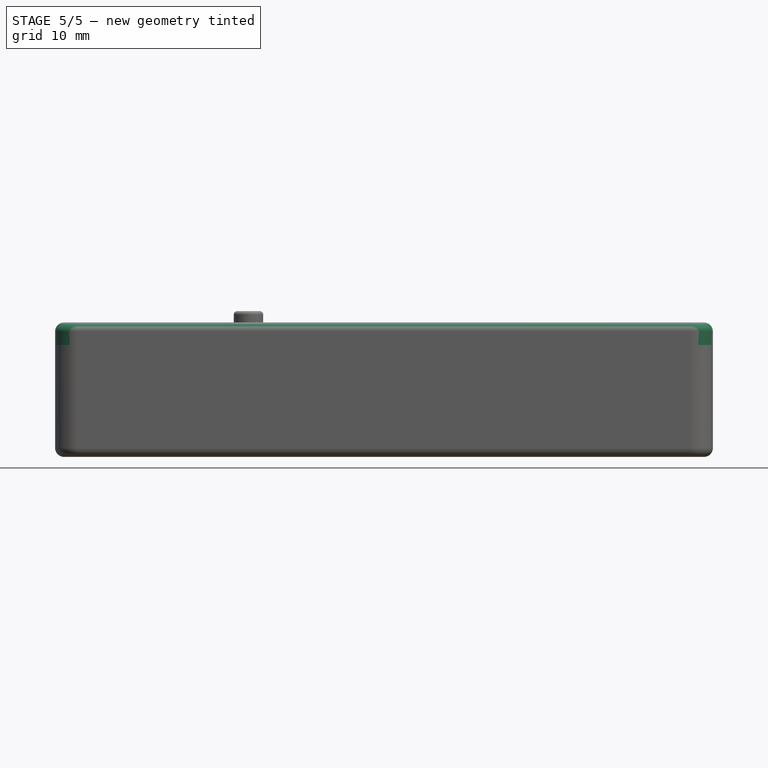
[diagram: stage 5 of 5 — front view after this stage's code; geometry added in this stage tinted green]
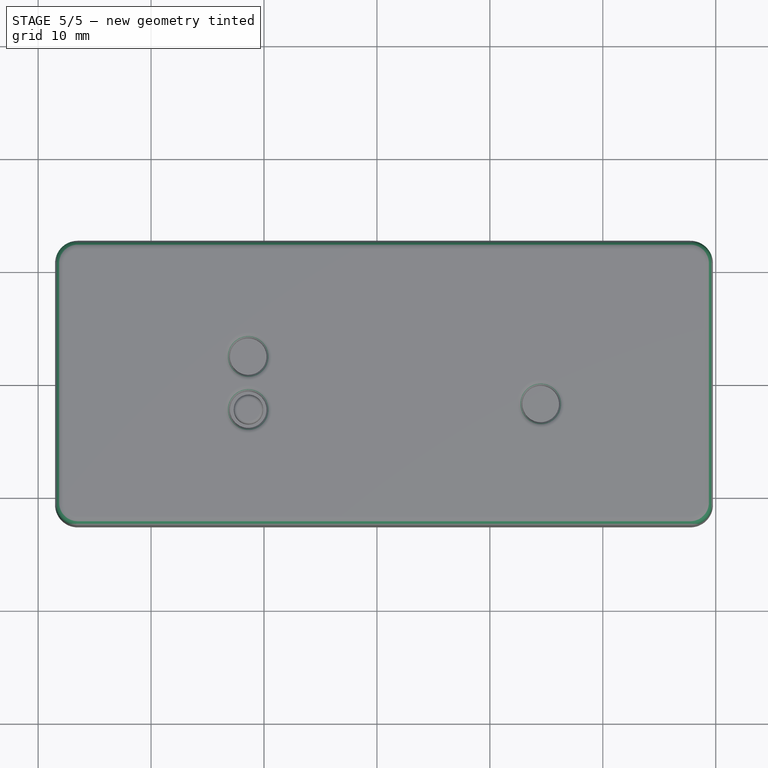
[diagram: stage 5 of 5 — top view after this stage's code; geometry added in this stage tinted green]
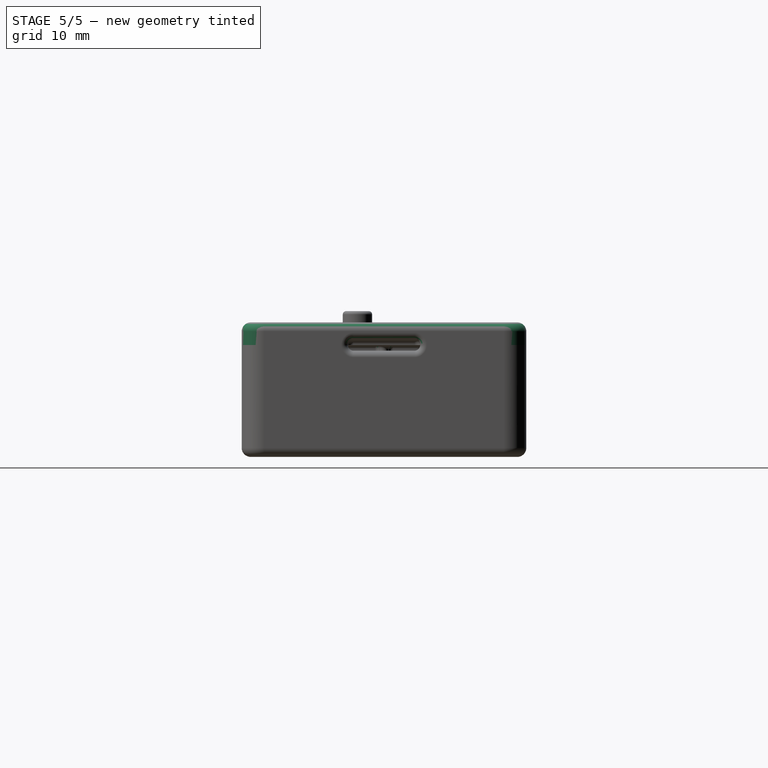
[diagram: stage 5 of 5 — right view after this stage's code; geometry added in this stage tinted green]
FEATURE [PartDesign::Fillet] Fillet003
  Base = -> MultiTransform001 [Edge10]
  BaseFeature = -> MultiTransform001
  NewSolid = false
  Radius = 0.6
  SupportTransform = false
  Suppress = false
FEATURE [PartDesign::Fillet] Fillet004
  Base = -> Fillet003 [Edge7,Edge3,Edge52,Edge62]
  BaseFeature = -> Fillet003
  NewSolid = false
  Radius = 2
  SupportTransform = false
  Suppress = false
FEATURE [PartDesign::Fillet] Fillet005
  Base = -> Fillet004 [Edge63]
  BaseFeature = -> Fillet004
  NewSolid = false
  Radius = 0.8
  SupportTransform = false
  Suppress = false
FEATURE [PartDesign::Fillet] Fillet011  label="Button Holes"
  Base = -> Fillet005 [Edge76,Edge77,Edge78,Edge54,Edge32,Edge53]
  BaseFeature = -> Fillet005
  NewSolid = false
  Radius = 0.5
  SupportTransform = false
  Suppress = false
FEATURE [PartDesign::Fillet] Fillet016
  Base = -> Fillet011 [Edge123,Edge32,Edge34,Edge110,Edge26,Edge118,Edge31,Edge130]
  BaseFeature = -> Fillet011
  NewSolid = false
  Radius = 0.4
  SupportTransform = false
  Suppress = false
FEATURE [PartDesign::Fillet] Fillet017
  Base = -> Fillet016 [Edge34,Edge35,Edge37,Edge36,Edge32,Edge31,Edge30,Edge33,Edge39,Edge38,Edge40,Edge41,Edge44,Edge43,Edge42,Edge45]
  BaseFeature = -> Fillet016
  NewSolid = false
  Radius = 0.2
  SupportTransform = false
  Suppress = false
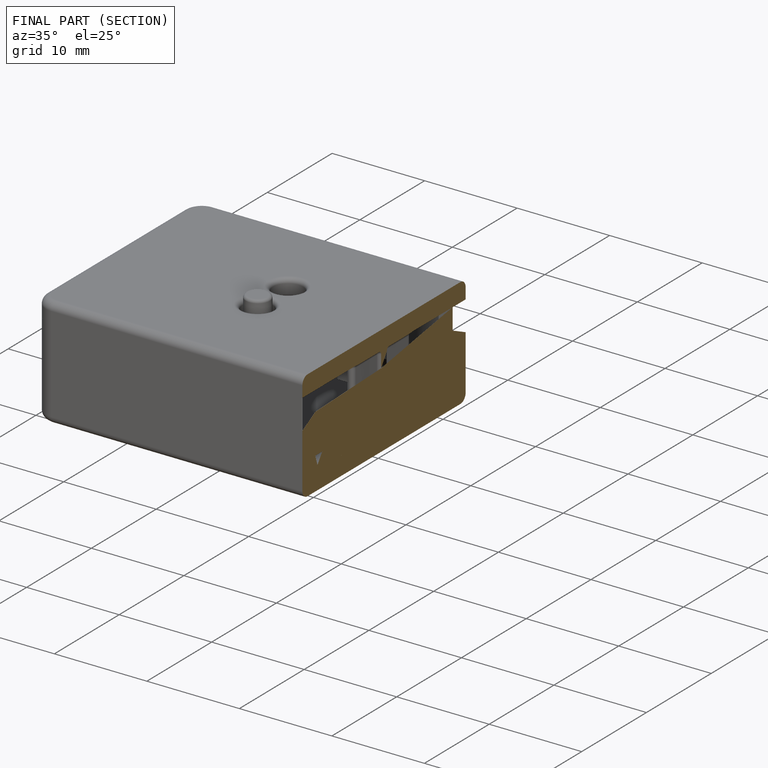
[diagram: finished part — half-section view (interior)]
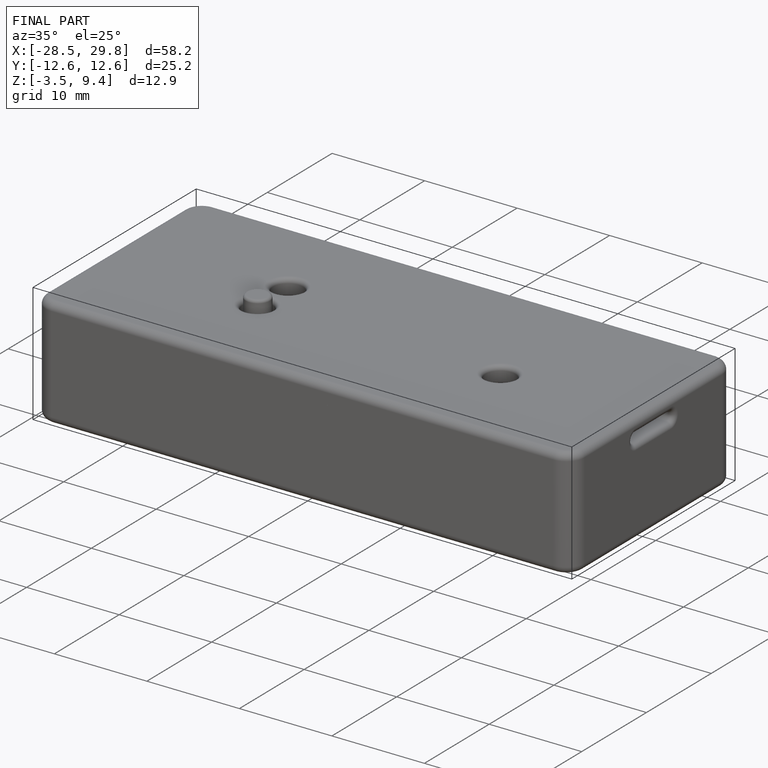
[diagram: finished part — iso view with bounding-box wireframe]
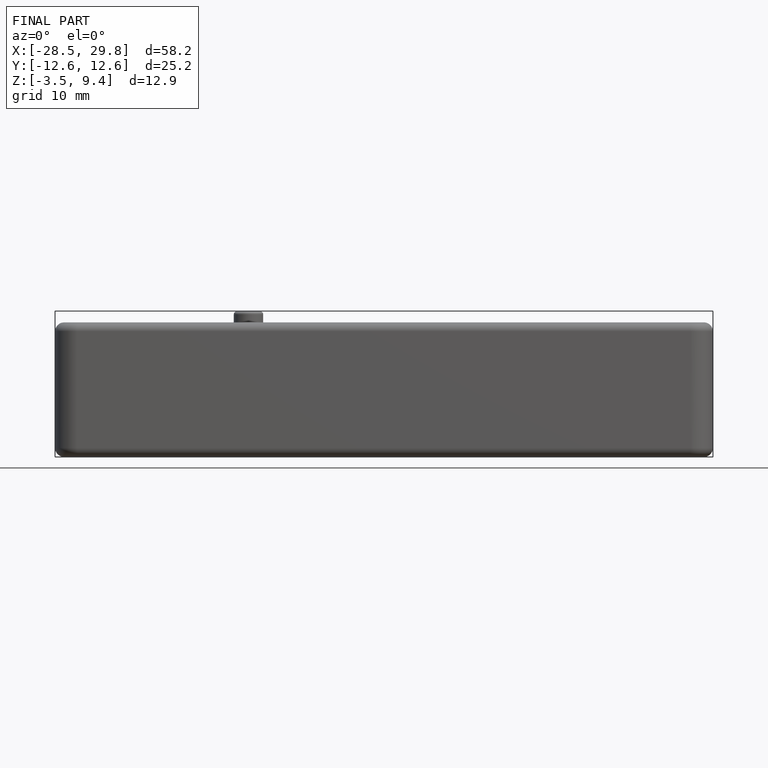
[diagram: finished part — front view with bounding-box wireframe]
